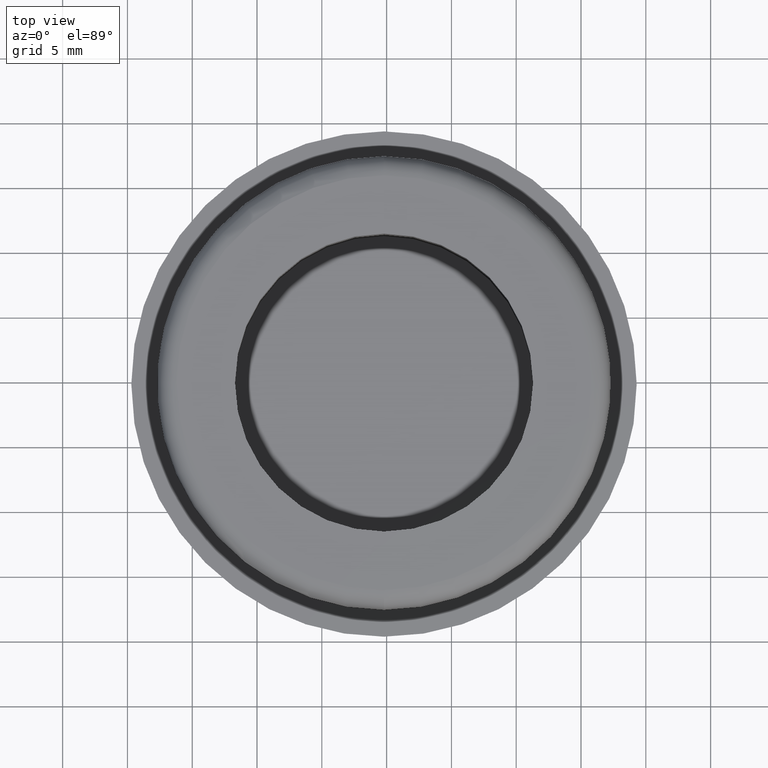
[diagram: clean part render]
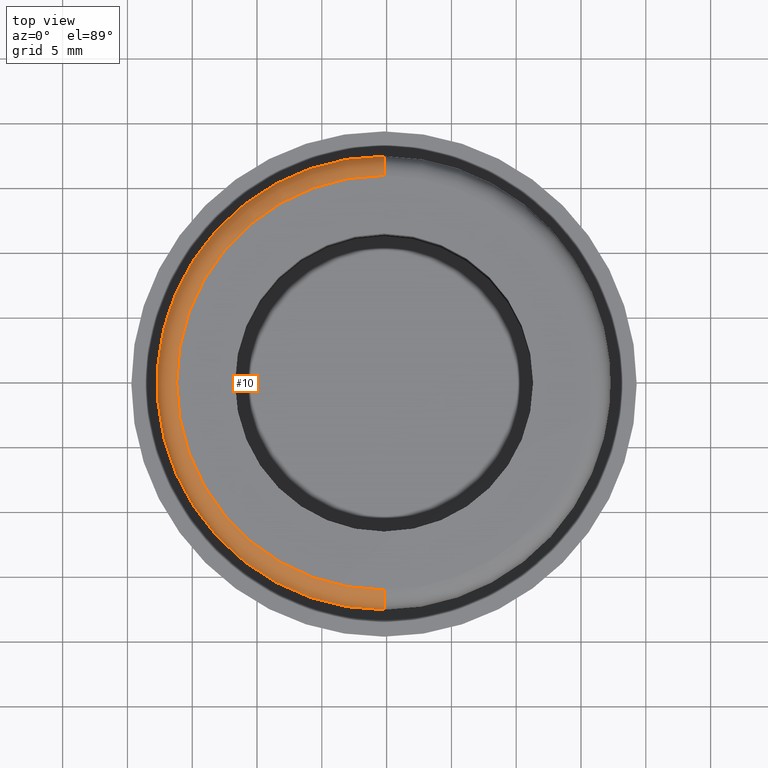
[diagram: same view with one face highlighted and labeled with its STEP entity id]
A machine part, top view. The second image highlights one B-rep face of the part: STEP entity #10.
In plain terms, the highlighted toroidal blend (fillet) surface has major radius 16 mm and minor (blend) radius 1.5 mm.
Its self-contained STEP definition (entity closure, byte-faithful):
#10 = ADVANCED_FACE ( 'NONE', ( #368 ), #350, .T. ) ;
#11 = CARTESIAN_POINT ( 'NONE',  ( 0.0000000000000000000, 1.499999999999996700, -16.00000000000000000 ) ) ;
#19 = EDGE_CURVE ( 'NONE', #353, #331, #603, .T. ) ;
#35 = EDGE_CURVE ( 'NONE', #199, #128, #337, .T. ) ;
#42 = CIRCLE ( 'NONE', #282, 1.500000000000001300 ) ;
#43 = EDGE_LOOP ( 'NONE', ( #192, #371, #315, #388 ) ) ;
#59 = EDGE_CURVE ( 'NONE', #199, #353, #42, .T. ) ;
#81 = EDGE_CURVE ( 'NONE', #128, #331, #424, .T. ) ;
#103 = AXIS2_PLACEMENT_3D ( 'NONE', #431, #556, #564 ) ;
#128 = VERTEX_POINT ( 'NONE', #469 ) ;
#169 = CARTESIAN_POINT ( 'NONE',  ( 0.0000000000000000000, 1.499999999999996700, 0.0000000000000000000 ) ) ;
#173 = CARTESIAN_POINT ( 'NONE',  ( 2.051283388571816100E-015, -3.469446951953614200E-015, 15.99999999999998900 ) ) ;
#192 = ORIENTED_EDGE ( 'NONE', *, *, #59, .F. ) ;
#199 = VERTEX_POINT ( 'NONE', #609 ) ;
#245 = DIRECTION ( 'NONE',  ( 0.0000000000000000000, 0.0000000000000000000, 1.000000000000000000 ) ) ;
#282 = AXIS2_PLACEMENT_3D ( 'NONE', #326, #384, #625 ) ;
#315 = ORIENTED_EDGE ( 'NONE', *, *, #81, .T. ) ;
#319 = DIRECTION ( 'NONE',  ( 0.0000000000000000000, -1.000000000000000000, 0.0000000000000000000 ) ) ;
#326 = CARTESIAN_POINT ( 'NONE',  ( 1.959434878635765100E-015, 1.499999999999996700, 16.00000000000000000 ) ) ;
#331 = VERTEX_POINT ( 'NONE', #389 ) ;
#337 = CIRCLE ( 'NONE', #103, 17.50000000000000000 ) ;
#350 = TOROIDAL_SURFACE ( 'NONE', #543, 16.00000000000000000, 1.500000000000000400 ) ;
#353 = VERTEX_POINT ( 'NONE', #173 ) ;
#368 = FACE_OUTER_BOUND ( 'NONE', #43, .T. ) ;
#371 = ORIENTED_EDGE ( 'NONE', *, *, #35, .T. ) ;
#384 = DIRECTION ( 'NONE',  ( 1.000000000000000000, 0.0000000000000000000, -1.224646799147353200E-016 ) ) ;
#388 = ORIENTED_EDGE ( 'NONE', *, *, #19, .F. ) ;
#389 = CARTESIAN_POINT ( 'NONE',  ( 0.0000000000000000000, -3.469446951953614200E-015, -15.99999999999998900 ) ) ;
#418 = AXIS2_PLACEMENT_3D ( 'NONE', #11, #446, #245 ) ;
#424 = CIRCLE ( 'NONE', #418, 1.500000000000001300 ) ;
#431 = CARTESIAN_POINT ( 'NONE',  ( 0.0000000000000000000, 1.500000000000008200, 0.0000000000000000000 ) ) ;
#446 = DIRECTION ( 'NONE',  ( -1.000000000000000000, -0.0000000000000000000, -0.0000000000000000000 ) ) ;
#469 = CARTESIAN_POINT ( 'NONE',  ( 0.0000000000000000000, 1.500000000000008200, -17.50000000000000000 ) ) ;
#502 = DIRECTION ( 'NONE',  ( 0.0000000000000000000, 0.0000000000000000000, -1.000000000000000000 ) ) ;
#543 = AXIS2_PLACEMENT_3D ( 'NONE', #169, #319, #502 ) ;
#556 = DIRECTION ( 'NONE',  ( 0.0000000000000000000, -1.000000000000000000, 0.0000000000000000000 ) ) ;
#564 = DIRECTION ( 'NONE',  ( 0.0000000000000000000, 0.0000000000000000000, -1.000000000000000000 ) ) ;
#580 = DIRECTION ( 'NONE',  ( 0.0000000000000000000, 0.0000000000000000000, -1.000000000000000000 ) ) ;
#581 = AXIS2_PLACEMENT_3D ( 'NONE', #593, #623, #580 ) ;
#593 = CARTESIAN_POINT ( 'NONE',  ( 0.0000000000000000000, -3.469446951953614200E-015, 0.0000000000000000000 ) ) ;
#603 = CIRCLE ( 'NONE', #581, 15.99999999999998900 ) ;
#609 = CARTESIAN_POINT ( 'NONE',  ( 2.143131898507868200E-015, 1.500000000000008200, 17.50000000000000000 ) ) ;
#623 = DIRECTION ( 'NONE',  ( 0.0000000000000000000, -1.000000000000000000, 0.0000000000000000000 ) ) ;
#625 = DIRECTION ( 'NONE',  ( -1.224646799147352000E-016, 0.0000000000000000000, -1.000000000000000000 ) ) ;